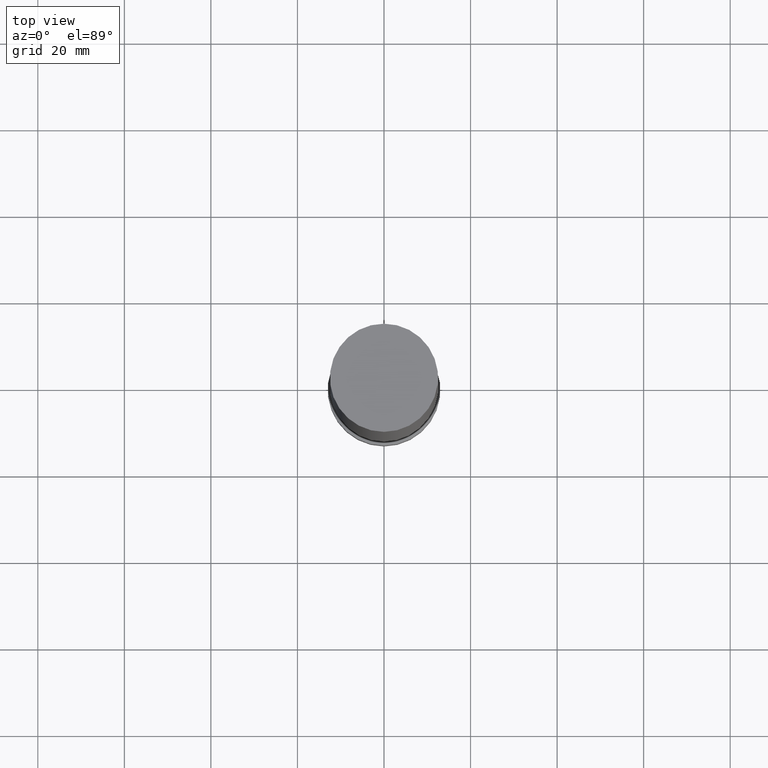
[diagram: clean part render]
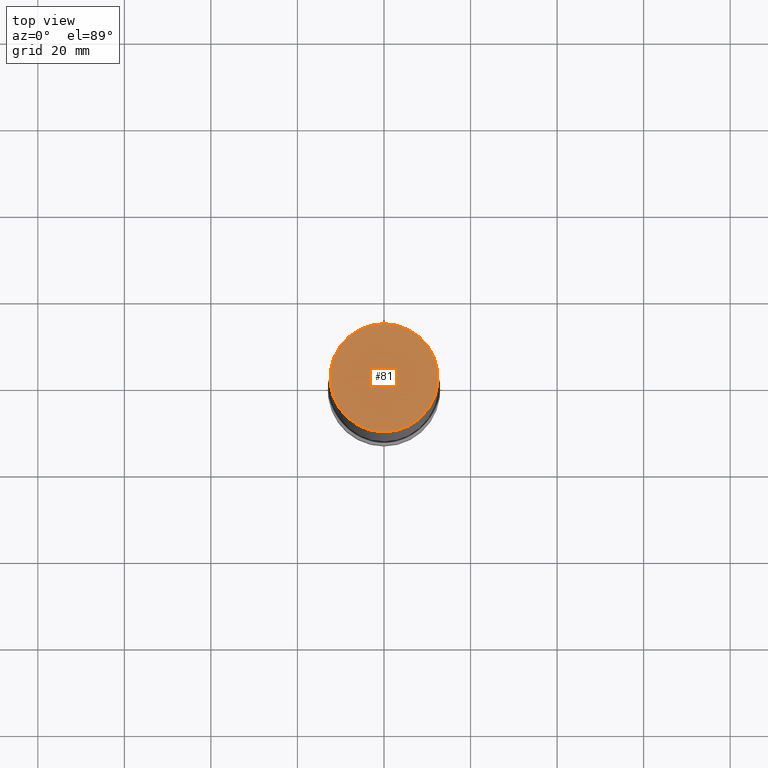
[diagram: same view with one face highlighted and labeled with its STEP entity id]
A machine part, top view. The second image highlights one B-rep face of the part: STEP entity #81.
In plain terms, the highlighted planar face has unit normal (-0, 0, 1).
Its self-contained STEP definition (entity closure, byte-faithful):
#81=ADVANCED_FACE('',(#100),#101,.T.);
#100=FACE_OUTER_BOUND('',#119,.T.);
#101=PLANE('',#120);
#119=EDGE_LOOP('',(#150));
#120=AXIS2_PLACEMENT_3D('',#151,#152,#153);
#150=ORIENTED_EDGE('',*,*,#159,.T.);
#151=CARTESIAN_POINT('',(-1.01033360929657E-014,6.25000000000111,165.0));
#152=DIRECTION('',(-6.12323399573677E-017,1.12462190922469E-014,1.0));
#153=DIRECTION('',(6.83805157960729E-031,1.0,-1.12462190922469E-014));
#159=EDGE_CURVE('',#170,#170,#171,.T.);
#170=VERTEX_POINT('',#182);
#171=CIRCLE('',#183,12.5);
#182=CARTESIAN_POINT('',(-1.01033360929657E-014,12.5000000000011,165.0));
#183=AXIS2_PLACEMENT_3D('',#199,#200,#201);
#199=CARTESIAN_POINT('',(-1.01033360929657E-014,1.09800101951923E-012,165.0));
#200=DIRECTION('',(-6.12323399573677E-017,6.61805729452078E-015,1.0));
#201=DIRECTION('',(4.00411981384664E-031,1.0,-6.61805729452078E-015));